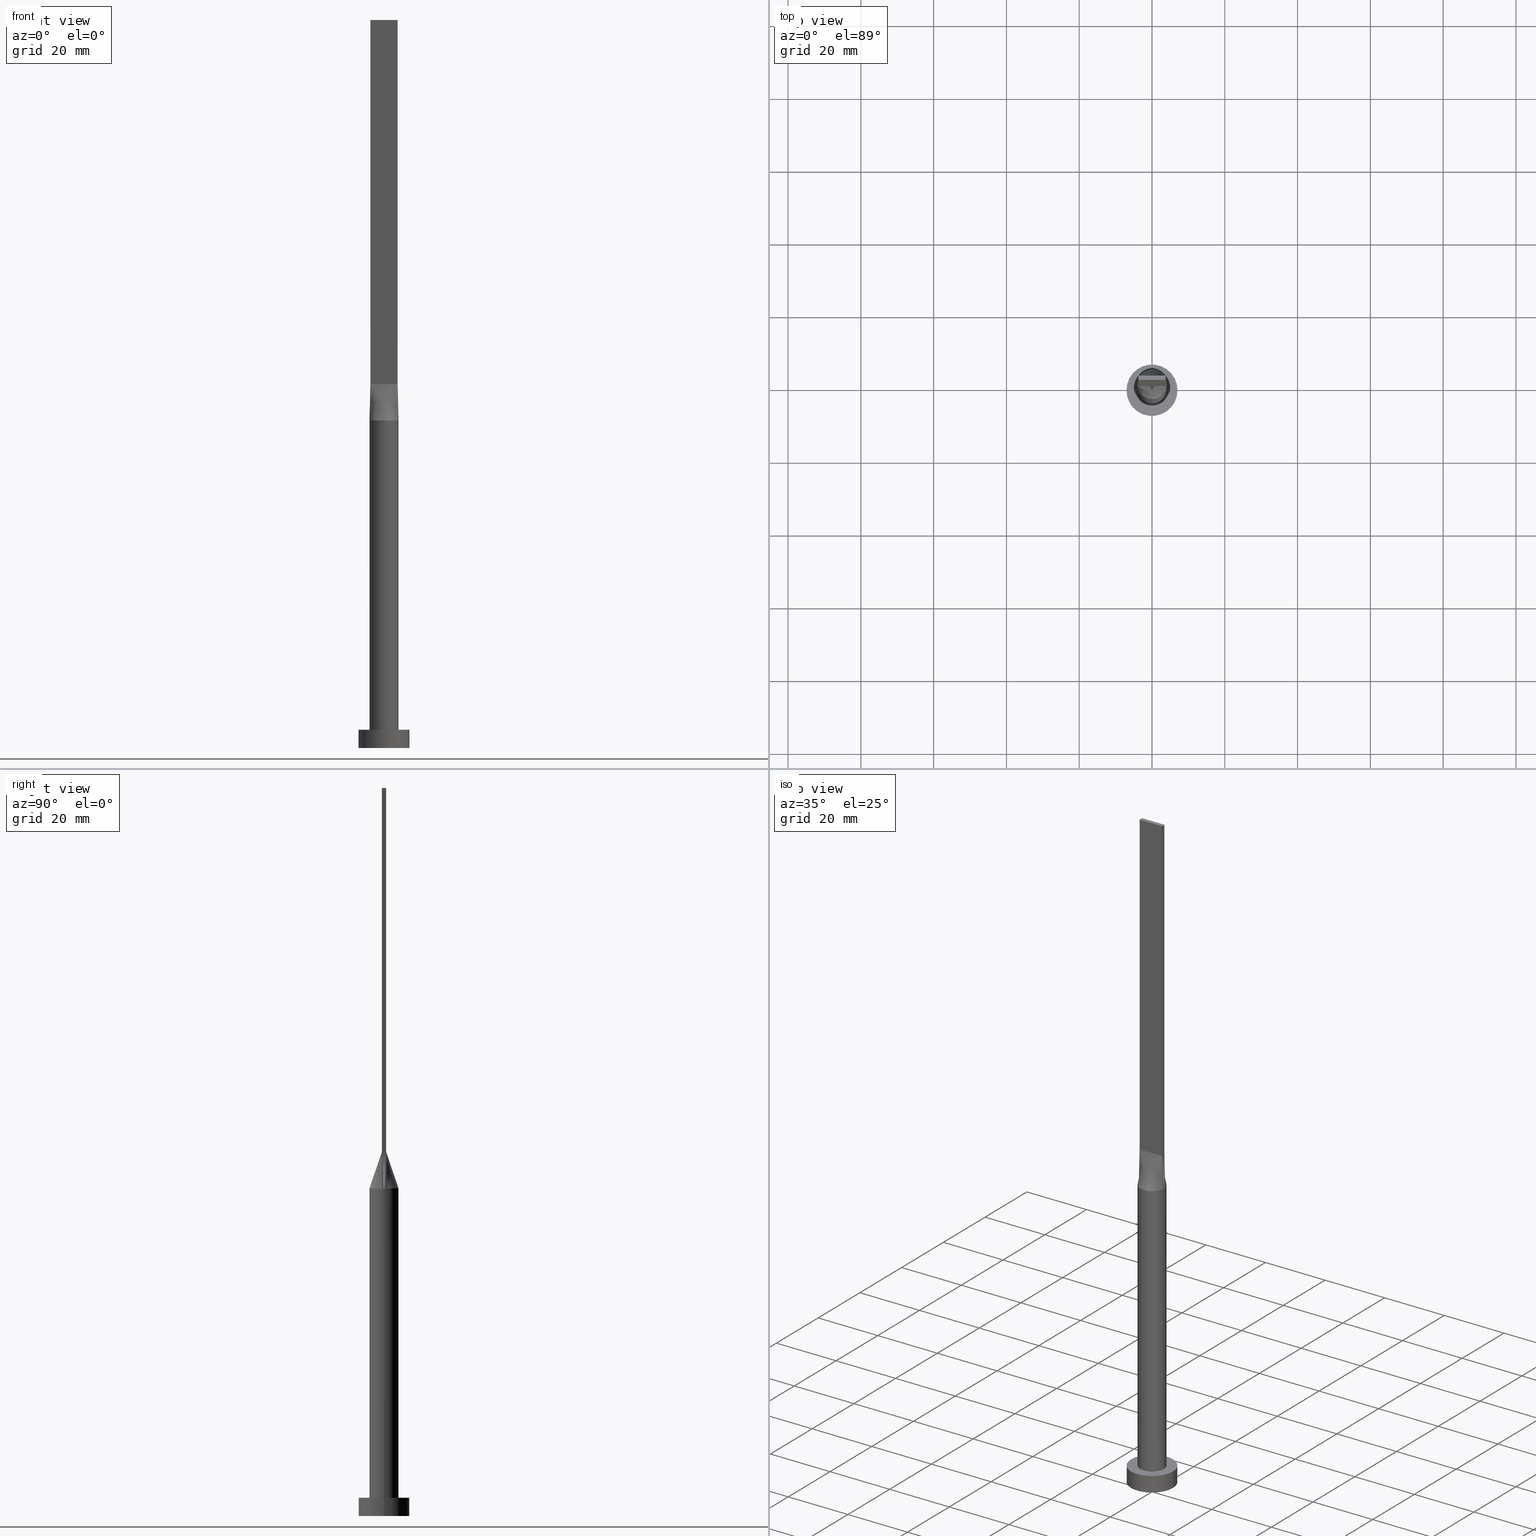
[diagram: canonical four-view strip — front | top / right | iso, engineering-drawing reading convention]
A machine part, canonical four-view strip (front | top / right | iso — engineering-drawing reading convention). The complete STEP part file that produces these views, byte-faithful:
ISO-10303-21;
HEADER;
FILE_DESCRIPTION (( 'STEP AP203' ),
    '1' );
FILE_NAME ('1fcb.STEP',
    '2023-02-13T09:37:36',
    ( '' ),
    ( '' ),
    'SwSTEP 2.0',
    'SolidWorks 2019',
    '' );
FILE_SCHEMA (( 'CONFIG_CONTROL_DESIGN' ));
ENDSEC;

DATA;
#1 = VECTOR ( 'NONE', #348, 1000.000000000000000 ) ;
#2 = CARTESIAN_POINT ( 'NONE',  ( -2.500000000000002665, 0.6000000000000000888, 100.0000000000000000 ) ) ;
#3 = CARTESIAN_POINT ( 'NONE',  ( -0.3124999999999982792, -0.5999999999999995337, 100.0000000000000142 ) ) ;
#4 = APPLICATION_CONTEXT ( 'configuration controlled 3d designs of mechanical parts and assemblies' ) ;
#5 = DIRECTION ( 'NONE',  ( 1.000000000000000000, 0.000000000000000000, 0.000000000000000000 ) ) ;
#6 = B_SPLINE_CURVE_WITH_KNOTS ( 'NONE', 3,
 ( #395, #580, #506, #510, #108, #64, #277, #460, #61, #200, #296, #479, #34, #420, #483, #525, #165, #468 ),
 .UNSPECIFIED., .F., .F.,
 ( 4, 2, 2, 2, 2, 2, 2, 2, 4 ),
 ( 0.000000000000000000, 0.1249999999999999445, 0.2499999999999998890, 0.3749999999999998335, 0.4999999999999997780, 0.6249999999999997780, 0.7499999999999998890, 0.8749999999999998890, 1.000000000000000000 ),
 .UNSPECIFIED. ) ;
#7 = CARTESIAN_POINT ( 'NONE',  ( -3.219262664220059023, -2.422342486356523050, 90.00000000000001421 ) ) ;
#8 = ORIENTED_EDGE ( 'NONE', *, *, #244, .T. ) ;
#9 = CARTESIAN_POINT ( 'NONE',  ( 0.3124999999999934497, 0.6000000000000000888, 100.0000000000000142 ) ) ;
#10 = CARTESIAN_POINT ( 'NONE',  ( -2.553164211252349158, -3.116528153703943094, 90.00000000000008527 ) ) ;
#11 = ADVANCED_FACE ( 'NONE', ( #439 ), #385, .T. ) ;
#12 = ORIENTED_EDGE ( 'NONE', *, *, #301, .T. ) ;
#13 = CARTESIAN_POINT ( 'NONE',  ( 0.000000000000000000, 0.000000000000000000, 90.00000000000001421 ) ) ;
#14 = VECTOR ( 'NONE', #377, 1000.000000000000000 ) ;
#15 = DIRECTION ( 'NONE',  ( -0.000000000000000000, -0.000000000000000000, -1.000000000000000000 ) ) ;
#16 = ORIENTED_EDGE ( 'NONE', *, *, #449, .F. ) ;
#17 = FACE_OUTER_BOUND ( 'NONE', #232, .T. ) ;
#18 = ORIENTED_EDGE ( 'NONE', *, *, #476, .F. ) ;
#19 = DIRECTION ( 'NONE',  ( -0.01997216621675833650, -0.003195546594681163317, 0.9997954296047624201 ) ) ;
#20 = EDGE_CURVE ( 'NONE', #281, #240, #435, .T. ) ;
#21 = VECTOR ( 'NONE', #63, 1000.000000000000000 ) ;
#22 = ORIENTED_EDGE ( 'NONE', *, *, #514, .T. ) ;
#23 = FACE_OUTER_BOUND ( 'NONE', #67, .T. ) ;
#24 = ORIENTED_EDGE ( 'NONE', *, *, #315, .T. ) ;
#25 = DIRECTION ( 'NONE',  ( 0.000000000000000000, 0.000000000000000000, 1.000000000000000000 ) ) ;
#26 = CARTESIAN_POINT ( 'NONE',  ( 3.983043858920071845, 0.4239536840938771811, 90.00000000000001421 ) ) ;
#27 = ORIENTED_EDGE ( 'NONE', *, *, #99, .F. ) ;
#28 = EDGE_CURVE ( 'NONE', #33, #102, #426, .T. ) ;
#29 = CARTESIAN_POINT ( 'NONE',  ( 0.000000000000000000, 0.000000000000000000, 90.00000000000001421 ) ) ;
#30 = CARTESIAN_POINT ( 'NONE',  ( -3.437499999999999556, -0.5999999999999993117, 100.0000000000000000 ) ) ;
#31 = AXIS2_PLACEMENT_3D ( 'NONE', #251, #484, #391 ) ;
#32 = CARTESIAN_POINT ( 'NONE',  ( 3.750000000000000000, 0.6000000000000001998, 100.0000000000000000 ) ) ;
#33 = VERTEX_POINT ( 'NONE', #389 ) ;
#34 = CARTESIAN_POINT ( 'NONE',  ( -2.553164211252348714, 3.116528153703943538, 90.00000000000000000 ) ) ;
#35 = CARTESIAN_POINT ( 'NONE',  ( -3.750000000000000000, -0.5999999999999993117, 200.0000000000000000 ) ) ;
#36 = ADVANCED_FACE ( 'NONE', ( #572 ), #87, .F. ) ;
#37 = VECTOR ( 'NONE', #368, 1000.000000000000000 ) ;
#38 = CYLINDRICAL_SURFACE ( 'NONE', #218, 7.000000000000000000 ) ;
#39 = CARTESIAN_POINT ( 'NONE',  ( 3.125000000000000000, -0.5999999999999996447, 100.0000000000000000 ) ) ;
#40 = DIRECTION ( 'NONE',  ( 1.000000000000000000, 0.000000000000000000, 0.000000000000000000 ) ) ;
#41 = CARTESIAN_POINT ( 'NONE',  ( 3.949762527666821565, -0.6319620044266891501, 90.00000000000001421 ) ) ;
#42 = ORIENTED_EDGE ( 'NONE', *, *, #268, .F. ) ;
#43 = EDGE_CURVE ( 'NONE', #52, #192, #254, .T. ) ;
#44 = CARTESIAN_POINT ( 'NONE',  ( -3.949762527666821565, 0.6319620044266903713, 90.00000000000001421 ) ) ;
#45 = ORIENTED_EDGE ( 'NONE', *, *, #186, .F. ) ;
#46 = PRODUCT_RELATED_PRODUCT_CATEGORY ( 'detail', '', ( #292 ) ) ;
#47 = LOCAL_TIME ( 10, 37, 36.00000000000000000, #118 ) ;
#48 = CARTESIAN_POINT ( 'NONE',  ( -7.000000000000000000, 0.000000000000000000, 5.000000000000000000 ) ) ;
#49 = VERTEX_POINT ( 'NONE', #345 ) ;
#50 = CARTESIAN_POINT ( 'NONE',  ( -3.897760447583618504, 0.9569750049467115049, 90.00000000000004263 ) ) ;
#51 = CARTESIAN_POINT ( 'NONE',  ( 0.3125000000000016098, -0.5999999999999995337, 100.0000000000000000 ) ) ;
#52 = VERTEX_POINT ( 'NONE', #198 ) ;
#53 = FACE_OUTER_BOUND ( 'NONE', #516, .T. ) ;
#54 = AXIS2_PLACEMENT_3D ( 'NONE', #77, #205, #575 ) ;
#55 = CARTESIAN_POINT ( 'NONE',  ( 3.750000000000000000, 0.6000000000000001998, 200.0000000000000000 ) ) ;
#56 = CC_DESIGN_APPROVAL ( #393, ( #403 ) ) ;
#57 = VERTEX_POINT ( 'NONE', #378 ) ;
#58 = CARTESIAN_POINT ( 'NONE',  ( -3.750000000000000000, 0.6000000000000001998, 200.0000000000000000 ) ) ;
#59 = ORIENTED_EDGE ( 'NONE', *, *, #130, .F. ) ;
#60 = CARTESIAN_POINT ( 'NONE',  ( 3.849881263833410561, 0.6159810022133449525, 95.00000000000000000 ) ) ;
#61 = CARTESIAN_POINT ( 'NONE',  ( 0.5684794080625145130, 4.000000000000000000, 90.00000000000000000 ) ) ;
#62 = EDGE_LOOP ( 'NONE', ( #413, #555, #538, #425, #221, #24 ) ) ;
#63 = DIRECTION ( 'NONE',  ( -0.000000000000000000, -0.000000000000000000, -1.000000000000000000 ) ) ;
#64 = CARTESIAN_POINT ( 'NONE',  ( 2.553164211252348714, 3.116528153703943538, 90.00000000000001421 ) ) ;
#65 = CIRCLE ( 'NONE', #246, 4.000000000000000000 ) ;
#66 = CC_DESIGN_APPROVAL ( #116, ( #562 ) ) ;
#67 = EDGE_LOOP ( 'NONE', ( #8, #228 ) ) ;
#68 = COORDINATED_UNIVERSAL_TIME_OFFSET ( 1, 0, .AHEAD. ) ;
#69 = EDGE_CURVE ( 'NONE', #52, #207, #530, .T. ) ;
#70 = CARTESIAN_POINT ( 'NONE',  ( 3.750000000000000000, 0.6000000000000001998, 100.0000000000000000 ) ) ;
#71 = ORIENTED_EDGE ( 'NONE', *, *, #331, .T. ) ;
#72 = PERSON_AND_ORGANIZATION ( #461, #438 ) ;
#73 = FACE_OUTER_BOUND ( 'NONE', #258, .T. ) ;
#74 = CARTESIAN_POINT ( 'NONE',  ( 4.000000000000000000, 4.898587196589412829E-16, 90.00000000000001421 ) ) ;
#75 =( NAMED_UNIT ( * ) SI_UNIT ( $, .STERADIAN. ) SOLID_ANGLE_UNIT ( ) );
#76 = LINE ( 'NONE', #163, #14 ) ;
#77 = CARTESIAN_POINT ( 'NONE',  ( 0.000000000000000000, 0.000000000000000000, 0.000000000000000000 ) ) ;
#78 = CIRCLE ( 'NONE', #406, 7.000000000000000000 ) ;
#79 =( LENGTH_UNIT ( ) NAMED_UNIT ( * ) SI_UNIT ( .MILLI., .METRE. ) );
#80 = CARTESIAN_POINT ( 'NONE',  ( -3.849881263833410561, 0.6159810022133451746, 95.00000000000000000 ) ) ;
#81 = DIRECTION ( 'NONE',  ( -1.000000000000000000, 5.782411586589358625E-17, 0.000000000000000000 ) ) ;
#82 = ADVANCED_FACE ( 'NONE', ( #85 ), #576, .T. ) ;
#83 = CARTESIAN_POINT ( 'NONE',  ( 3.750000000000000000, -0.5999999999999997558, 200.0000000000000000 ) ) ;
#84 = DIRECTION ( 'NONE',  ( -0.000000000000000000, -0.000000000000000000, -1.000000000000000000 ) ) ;
#85 = FACE_OUTER_BOUND ( 'NONE', #148, .T. ) ;
#86 = DIRECTION ( 'NONE',  ( 0.000000000000000000, 0.000000000000000000, 1.000000000000000000 ) ) ;
#87 = PLANE ( 'NONE',  #88 ) ;
#88 = AXIS2_PLACEMENT_3D ( 'NONE', #35, #166, #81 ) ;
#89 = APPLICATION_CONTEXT ( 'configuration controlled 3d designs of mechanical parts and assemblies' ) ;
#90 = LINE ( 'NONE', #175, #560 ) ;
#91 = EDGE_CURVE ( 'NONE', #495, #418, #295, .T. ) ;
#92 = CARTESIAN_POINT ( 'NONE',  ( -0.6249999999999978906, -0.5999999999999994227, 100.0000000000000000 ) ) ;
#93 = CARTESIAN_POINT ( 'NONE',  ( 2.499999999999996003, 0.6000000000000000888, 100.0000000000000000 ) ) ;
#94 = ORIENTED_EDGE ( 'NONE', *, *, #153, .T. ) ;
#95 = CARTESIAN_POINT ( 'NONE',  ( 0.000000000000000000, 0.000000000000000000, 5.000000000000000000 ) ) ;
#96 = VERTEX_POINT ( 'NONE', #532 ) ;
#97 = AXIS2_PLACEMENT_3D ( 'NONE', #243, #559, #300 ) ;
#98 = CARTESIAN_POINT ( 'NONE',  ( 2.553164211252348714, 3.116528153703943538, 90.00000000000001421 ) ) ;
#99 = EDGE_CURVE ( 'NONE', #102, #33, #323, .T. ) ;
#100 = CARTESIAN_POINT ( 'NONE',  ( 3.750000000000000000, 0.6000000000000001998, 200.0000000000000000 ) ) ;
#101 = CYLINDRICAL_SURFACE ( 'NONE', #535, 4.000000000000000000 ) ;
#102 = VERTEX_POINT ( 'NONE', #526 ) ;
#103 = AXIS2_PLACEMENT_3D ( 'NONE', #185, #147, #107 ) ;
#104 = DIRECTION ( 'NONE',  ( 1.000000000000000000, 0.000000000000000000, 0.000000000000000000 ) ) ;
#105 = ADVANCED_FACE ( 'NONE', ( #160 ), #290, .F. ) ;
#106 = ORIENTED_EDGE ( 'NONE', *, *, #20, .T. ) ;
#107 = DIRECTION ( 'NONE',  ( 1.000000000000000000, 0.000000000000000000, 0.000000000000000000 ) ) ;
#108 = CARTESIAN_POINT ( 'NONE',  ( 3.219262664220058134, 2.422342486356523938, 90.00000000000000000 ) ) ;
#109 = ORIENTED_EDGE ( 'NONE', *, *, #485, .F. ) ;
#110 = DIRECTION ( 'NONE',  ( -0.000000000000000000, 0.000000000000000000, -1.000000000000000000 ) ) ;
#111 = EDGE_LOOP ( 'NONE', ( #190, #42, #504, #557 ) ) ;
#112 = SECURITY_CLASSIFICATION_LEVEL ( 'unclassified' ) ;
#113 = CIRCLE ( 'NONE', #132, 4.000000000000000000 ) ;
#114 = ORIENTED_EDGE ( 'NONE', *, *, #261, .T. ) ;
#115 = PERSON_AND_ORGANIZATION_ROLE ( 'design_supplier' ) ;
#116 = APPROVAL ( #478, 'NEUR�EN�' ) ;
#117 = DIRECTION ( 'NONE',  ( 0.000000000000000000, 0.000000000000000000, 1.000000000000000000 ) ) ;
#118 = COORDINATED_UNIVERSAL_TIME_OFFSET ( 1, 0, .AHEAD. ) ;
#119 = CARTESIAN_POINT ( 'NONE',  ( 3.750000000000000000, 0.6000000000000001998, 200.0000000000000000 ) ) ;
#120 = CARTESIAN_POINT ( 'NONE',  ( -3.983043858920070956, -0.4239536840938767370, 90.00000000000001421 ) ) ;
#121 = APPROVAL_ROLE ( '' ) ;
#122 = CARTESIAN_POINT ( 'NONE',  ( 3.897760447583618948, 0.9569750049467118380, 90.00000000000002842 ) ) ;
#123 = CARTESIAN_POINT ( 'NONE',  ( -3.949762527666821565, -0.6319620044266894832, 90.00000000000001421 ) ) ;
#124 = ADVANCED_FACE ( 'NONE', ( #128 ), #237, .T. ) ;
#125 = PERSON_AND_ORGANIZATION ( #461, #438 ) ;
#126 = CARTESIAN_POINT ( 'NONE',  ( -3.749999999999999556, 0.3999999999999975797, 100.0000000000000000 ) ) ;
#127 = CARTESIAN_POINT ( 'NONE',  ( -3.461914487322979905, 2.043998057340944197, 90.00000000000004263 ) ) ;
#128 = FACE_OUTER_BOUND ( 'NONE', #442, .T. ) ;
#129 = APPROVAL_ROLE ( '' ) ;
#130 = EDGE_CURVE ( 'NONE', #96, #57, #6, .T. ) ;
#131 = CARTESIAN_POINT ( 'NONE',  ( 4.000000000000000000, 4.898587196589412829E-16, 5.000000000000000000 ) ) ;
#132 = AXIS2_PLACEMENT_3D ( 'NONE', #321, #149, #267 ) ;
#133 = CARTESIAN_POINT ( 'NONE',  ( 3.219262664220058134, 2.422342486356523938, 90.00000000000000000 ) ) ;
#134 = CARTESIAN_POINT ( 'NONE',  ( 3.750000000000000000, -0.5999999999999997558, 100.0000000000000000 ) ) ;
#135 = CARTESIAN_POINT ( 'NONE',  ( -3.461914487322979905, -2.043998057340941976, 89.99999999999997158 ) ) ;
#136 = CARTESIAN_POINT ( 'NONE',  ( 3.999842262273348936, 9.852009208038395466E-16, 90.00000000000001421 ) ) ;
#137 = EDGE_CURVE ( 'NONE', #365, #52, #434, .T. ) ;
#138 = VECTOR ( 'NONE', #285, 1000.000000000000000 ) ;
#139 = CARTESIAN_POINT ( 'NONE',  ( 7.000000000000000000, 8.572527594031473190E-16, 5.000000000000000000 ) ) ;
#140 = ORIENTED_EDGE ( 'NONE', *, *, #137, .F. ) ;
#141 = FACE_OUTER_BOUND ( 'NONE', #111, .T. ) ;
#142 = ORIENTED_EDGE ( 'NONE', *, *, #28, .T. ) ;
#143 = PLANE ( 'NONE',  #199 ) ;
#144 = EDGE_CURVE ( 'NONE', #418, #236, #574, .T. ) ;
#145 = ORIENTED_EDGE ( 'NONE', *, *, #219, .F. ) ;
#146 = AXIS2_PLACEMENT_3D ( 'NONE', #412, #452, #505 ) ;
#147 = DIRECTION ( 'NONE',  ( 0.000000000000000000, 0.000000000000000000, 1.000000000000000000 ) ) ;
#148 = EDGE_LOOP ( 'NONE', ( #322, #260, #152, #45, #177 ) ) ;
#149 = DIRECTION ( 'NONE',  ( 0.000000000000000000, 0.000000000000000000, 1.000000000000000000 ) ) ;
#150 = VERTEX_POINT ( 'NONE', #70 ) ;
#151 = PERSON_AND_ORGANIZATION ( #461, #438 ) ;
#152 = ORIENTED_EDGE ( 'NONE', *, *, #194, .F. ) ;
#153 = EDGE_CURVE ( 'NONE', #57, #192, #428, .T. ) ;
#154 = MECHANICAL_CONTEXT ( 'NONE', #89, 'mechanical' ) ;
#155 = VECTOR ( 'NONE', #417, 1000.000000000000000 ) ;
#156 = CARTESIAN_POINT ( 'NONE',  ( 0.000000000000000000, 0.000000000000000000, 0.000000000000000000 ) ) ;
#157 = B_SPLINE_SURFACE_WITH_KNOTS ( 'NONE', 3, 1, ( 
 ( #242, #159 ),
 ( #122, #336 ),
 ( #523, #179 ),
 ( #216, #93 ),
 ( #133, #446 ),
 ( #98, #440 ),
 ( #577, #486 ),
 ( #497, #253 ),
 ( #537, #9 ),
 ( #350, #220 ),
 ( #312, #397 ),
 ( #171, #265 ),
 ( #493, #354 ),
 ( #394, #262 ),
 ( #127, #2 ),
 ( #450, #443 ),
 ( #50, #182 ),
 ( #44, #400 ) ),
 .UNSPECIFIED., .F., .F., .F.,
 ( 4, 2, 2, 2, 2, 2, 2, 2, 4 ),
 ( 2, 2 ),
 ( 0.000000000000000000, 0.1249999999999999445, 0.2499999999999998890, 0.3749999999999998335, 0.4999999999999997780, 0.6249999999999997780, 0.7499999999999998890, 0.8749999999999998890, 1.000000000000000000 ),
 ( 0.000000000000000000, 1.000000000000000000 ),
 .UNSPECIFIED. ) ;
#158 = PERSON_AND_ORGANIZATION ( #461, #438 ) ;
#159 = CARTESIAN_POINT ( 'NONE',  ( 3.750000000000000000, 0.6000000000000001998, 100.0000000000000000 ) ) ;
#160 = FACE_OUTER_BOUND ( 'NONE', #462, .T. ) ;
#161 = CARTESIAN_POINT ( 'NONE',  ( -3.750000000000000000, -0.5999999999999993117, 100.0000000000000000 ) ) ;
#162 = EDGE_CURVE ( 'NONE', #281, #96, #255, .T. ) ;
#163 = CARTESIAN_POINT ( 'NONE',  ( -3.849881263833410561, -0.6159810022133443974, 95.00000000000000000 ) ) ;
#164 = DIRECTION ( 'NONE',  ( 1.000000000000000000, 0.000000000000000000, 0.000000000000000000 ) ) ;
#165 = CARTESIAN_POINT ( 'NONE',  ( -3.897760447583618504, 0.9569750049467115049, 90.00000000000004263 ) ) ;
#166 = DIRECTION ( 'NONE',  ( 5.782411586589358625E-17, 1.000000000000000000, -0.000000000000000000 ) ) ;
#167 = AXIS2_PLACEMENT_3D ( 'NONE', #473, #335, #566 ) ;
#168 = FACE_OUTER_BOUND ( 'NONE', #369, .T. ) ;
#169 = CARTESIAN_POINT ( 'NONE',  ( -3.750000000000000000, 0.6000000000000001998, 200.0000000000000000 ) ) ;
#170 = ADVANCED_FACE ( 'NONE', ( #168 ), #487, .T. ) ;
#171 = CARTESIAN_POINT ( 'NONE',  ( -2.127794970397209884, 3.430476893735948440, 90.00000000000002842 ) ) ;
#172 = CARTESIAN_POINT ( 'NONE',  ( 3.800365609718893367, -1.311488165564686614, 90.00000000000001421 ) ) ;
#173 = APPROVAL_STATUS ( 'not_yet_approved' ) ;
#174 = CYLINDRICAL_SURFACE ( 'NONE', #447, 7.000000000000000000 ) ;
#175 = CARTESIAN_POINT ( 'NONE',  ( -3.750000000000000000, -0.5999999999999993117, 100.0000000000000000 ) ) ;
#176 = CARTESIAN_POINT ( 'NONE',  ( 0.5684794080625150681, -4.000000000000000888, 90.00000000000002842 ) ) ;
#177 = ORIENTED_EDGE ( 'NONE', *, *, #153, .F. ) ;
#178 = APPROVAL_DATE_TIME ( #399, #421 ) ;
#179 = CARTESIAN_POINT ( 'NONE',  ( 3.124999999999997780, 0.6000000000000001998, 100.0000000000000000 ) ) ;
#180 = EDGE_CURVE ( 'NONE', #195, #361, #424, .T. ) ;
#181 = CARTESIAN_POINT ( 'NONE',  ( -1.562499999999998002, -0.5999999999999994227, 100.0000000000000000 ) ) ;
#182 = CARTESIAN_POINT ( 'NONE',  ( -3.437500000000000444, 0.6000000000000000888, 100.0000000000000000 ) ) ;
#183 = CARTESIAN_POINT ( 'NONE',  ( 1.134810363096319108, -3.874001625491798162, 90.00000000000000000 ) ) ;
#184 = VECTOR ( 'NONE', #390, 1000.000000000000000 ) ;
#185 = CARTESIAN_POINT ( 'NONE',  ( 0.000000000000000000, 0.000000000000000000, 5.000000000000000000 ) ) ;
#186 = EDGE_CURVE ( 'NONE', #192, #581, #531, .T. ) ;
#187 = CARTESIAN_POINT ( 'NONE',  ( -4.000000000000000000, 0.000000000000000000, 5.000000000000000000 ) ) ;
#188 = ORIENTED_EDGE ( 'NONE', *, *, #331, .F. ) ;
#189 = CARTESIAN_POINT ( 'NONE',  ( -3.750000000000000000, -0.5999999999999993117, 200.0000000000000000 ) ) ;
#190 = ORIENTED_EDGE ( 'NONE', *, *, #186, .T. ) ;
#191 = DIRECTION ( 'NONE',  ( 0.000000000000000000, 0.000000000000000000, 1.000000000000000000 ) ) ;
#192 = VERTEX_POINT ( 'NONE', #568 ) ;
#193 = CARTESIAN_POINT ( 'NONE',  ( 3.950116941581656604, -0.6320178829360038053, 90.00000000000001421 ) ) ;
#194 = EDGE_CURVE ( 'NONE', #581, #495, #76, .T. ) ;
#195 = VERTEX_POINT ( 'NONE', #339 ) ;
#196 = PERSON_AND_ORGANIZATION ( #461, #438 ) ;
#197 = DIRECTION ( 'NONE',  ( 0.000000000000000000, -1.000000000000000000, 0.000000000000000000 ) ) ;
#198 = CARTESIAN_POINT ( 'NONE',  ( -3.750000000000000000, 0.6000000000000001998, 200.0000000000000000 ) ) ;
#199 = AXIS2_PLACEMENT_3D ( 'NONE', #372, #512, #410 ) ;
#200 = CARTESIAN_POINT ( 'NONE',  ( -0.5684794080625158452, 3.999999999999999112, 89.99999999999998579 ) ) ;
#201 = CARTESIAN_POINT ( 'NONE',  ( -3.800365609718892923, -1.311488165564685726, 90.00000000000000000 ) ) ;
#202 = CC_DESIGN_DATE_AND_TIME_ASSIGNMENT ( #518, #283, ( #403 ) ) ;
#203 = COORDINATED_UNIVERSAL_TIME_OFFSET ( 1, 0, .AHEAD. ) ;
#204 = CARTESIAN_POINT ( 'NONE',  ( -3.750000000000000000, 0.6000000000000001998, 100.0000000000000000 ) ) ;
#205 = DIRECTION ( 'NONE',  ( 0.000000000000000000, 0.000000000000000000, 1.000000000000000000 ) ) ;
#206 = CALENDAR_DATE ( 2023, 13, 2 ) ;
#207 = VERTEX_POINT ( 'NONE', #519 ) ;
#208 = CARTESIAN_POINT ( 'NONE',  ( -3.750000000000000000, -0.5999999999999993117, 100.0000000000000000 ) ) ;
#209 = APPROVAL_PERSON_ORGANIZATION ( #72, #116, #386 ) ;
#210 = LINE ( 'NONE', #392, #1 ) ;
#211 = CARTESIAN_POINT ( 'NONE',  ( -2.127794970397209884, -3.430476893735947996, 90.00000000000000000 ) ) ;
#212 = CALENDAR_DATE ( 2023, 13, 2 ) ;
#213 = FACE_OUTER_BOUND ( 'NONE', #357, .T. ) ;
#214 = CARTESIAN_POINT ( 'NONE',  ( 3.750000000000000000, -0.5999999999999997558, 100.0000000000000000 ) ) ;
#215 = ORIENTED_EDGE ( 'NONE', *, *, #130, .T. ) ;
#216 = CARTESIAN_POINT ( 'NONE',  ( 3.461914487322979017, 2.043998057340944197, 90.00000000000001421 ) ) ;
#217 = CARTESIAN_POINT ( 'NONE',  ( -1.249999999999997558, -0.5999999999999994227, 100.0000000000000000 ) ) ;
#218 = AXIS2_PLACEMENT_3D ( 'NONE', #358, #579, #302 ) ;
#219 = EDGE_CURVE ( 'NONE', #275, #102, #564, .T. ) ;
#220 = CARTESIAN_POINT ( 'NONE',  ( -0.3125000000000063283, 0.6000000000000000888, 100.0000000000000142 ) ) ;
#221 = ORIENTED_EDGE ( 'NONE', *, *, #180, .T. ) ;
#222 = DIRECTION ( 'NONE',  ( 0.000000000000000000, 0.000000000000000000, 1.000000000000000000 ) ) ;
#223 = CARTESIAN_POINT ( 'NONE',  ( 7.000000000000000000, 8.572527594031473190E-16, 5.000000000000000000 ) ) ;
#224 = ADVANCED_FACE ( 'NONE', ( #73 ), #157, .T. ) ;
#225 = VECTOR ( 'NONE', #84, 1000.000000000000000 ) ;
#226 = FACE_BOUND ( 'NONE', #374, .T. ) ;
#227 = MANIFOLD_SOLID_BREP ( 'P�idat vysunut�m5', #561 ) ;
#228 = ORIENTED_EDGE ( 'NONE', *, *, #235, .T. ) ;
#229 = FACE_OUTER_BOUND ( 'NONE', #230, .T. ) ;
#230 = EDGE_LOOP ( 'NONE', ( #27, #396 ) ) ;
#231 = DIRECTION ( 'NONE',  ( 0.000000000000000000, 0.000000000000000000, 1.000000000000000000 ) ) ;
#232 = EDGE_LOOP ( 'NONE', ( #286, #545, #491, #71 ) ) ;
#233 = AXIS2_PLACEMENT_3D ( 'NONE', #534, #256, #40 ) ;
#234 = LINE ( 'NONE', #463, #37 ) ;
#235 = EDGE_CURVE ( 'NONE', #445, #275, #498, .T. ) ;
#236 = VERTEX_POINT ( 'NONE', #134 ) ;
#237 = B_SPLINE_SURFACE_WITH_KNOTS ( 'NONE', 3, 1, ( 
 ( #123, #472 ),
 ( #293, #30 ),
 ( #201, #429 ),
 ( #135, #444 ),
 ( #7, #313 ),
 ( #10, #181 ),
 ( #211, #217 ),
 ( #500, #92 ),
 ( #451, #3 ),
 ( #176, #51 ),
 ( #183, #359 ),
 ( #578, #494 ),
 ( #543, #269 ),
 ( #352, #310 ),
 ( #257, #317 ),
 ( #172, #39 ),
 ( #306, #441 ),
 ( #41, #214 ) ),
 .UNSPECIFIED., .F., .F., .F.,
 ( 4, 2, 2, 2, 2, 2, 2, 2, 4 ),
 ( 2, 2 ),
 ( 0.000000000000000000, 0.1250000000000000555, 0.2500000000000001110, 0.3750000000000001665, 0.5000000000000001110, 0.6250000000000001110, 0.7500000000000001110, 0.8750000000000000000, 1.000000000000000000 ),
 ( 0.000000000000000000, 1.000000000000000000 ),
 .UNSPECIFIED. ) ;
#238 = CALENDAR_DATE ( 2023, 13, 2 ) ;
#239 = CARTESIAN_POINT ( 'NONE',  ( 3.999684524546696540, 0.2119768420469383408, 90.00000000000001421 ) ) ;
#240 = VERTEX_POINT ( 'NONE', #131 ) ;
#241 = PERSON_AND_ORGANIZATION ( #461, #438 ) ;
#242 = CARTESIAN_POINT ( 'NONE',  ( 3.949762527666821565, 0.6319620044266911485, 90.00000000000001421 ) ) ;
#243 = CARTESIAN_POINT ( 'NONE',  ( 0.000000000000000000, 0.000000000000000000, 90.00000000000001421 ) ) ;
#244 = EDGE_CURVE ( 'NONE', #275, #445, #78, .T. ) ;
#245 = APPROVAL_STATUS ( 'not_yet_approved' ) ;
#246 = AXIS2_PLACEMENT_3D ( 'NONE', #327, #231, #104 ) ;
#247 = CARTESIAN_POINT ( 'NONE',  ( 3.949762527666821565, -0.6319620044266909265, 90.00000000000001421 ) ) ;
#248 = CARTESIAN_POINT ( 'NONE',  ( -3.750000000000000000, 0.6000000000000001998, 100.0000000000000000 ) ) ;
#249 = CARTESIAN_POINT ( 'NONE',  ( -3.949762527666821565, -0.6319620044266894832, 90.00000000000001421 ) ) ;
#250 =( NAMED_UNIT ( * ) PLANE_ANGLE_UNIT ( ) SI_UNIT ( $, .RADIAN. ) );
#251 = CARTESIAN_POINT ( 'NONE',  ( 3.750000000000000000, 0.6000000000000001998, 200.0000000000000000 ) ) ;
#252 = EDGE_CURVE ( 'NONE', #581, #236, #90, .T. ) ;
#253 = CARTESIAN_POINT ( 'NONE',  ( 0.6249999999999938938, 0.6000000000000000888, 100.0000000000000000 ) ) ;
#254 = LINE ( 'NONE', #169, #379 ) ;
#255 = CIRCLE ( 'NONE', #370, 4.000000000000000000 ) ;
#256 = DIRECTION ( 'NONE',  ( 0.000000000000000000, 0.000000000000000000, 1.000000000000000000 ) ) ;
#257 = CARTESIAN_POINT ( 'NONE',  ( 3.461914487322980349, -2.043998057340943753, 90.00000000000002842 ) ) ;
#258 = EDGE_LOOP ( 'NONE', ( #215, #94, #408, #109 ) ) ;
#259 = DIRECTION ( 'NONE',  ( 1.000000000000000000, 9.769962616701377556E-15, 0.000000000000000000 ) ) ;
#260 = ORIENTED_EDGE ( 'NONE', *, *, #362, .T. ) ;
#261 = EDGE_CURVE ( 'NONE', #418, #281, #351, .T. ) ;
#262 = CARTESIAN_POINT ( 'NONE',  ( -2.187500000000003109, 0.6000000000000000888, 100.0000000000000000 ) ) ;
#263 = VECTOR ( 'NONE', #565, 1000.000000000000000 ) ;
#264 = CC_DESIGN_PERSON_AND_ORGANIZATION_ASSIGNMENT ( #196, #467, ( #416 ) ) ;
#265 = CARTESIAN_POINT ( 'NONE',  ( -1.250000000000004663, 0.6000000000000000888, 100.0000000000000000 ) ) ;
#266 = ORIENTED_EDGE ( 'NONE', *, *, #235, .F. ) ;
#267 = DIRECTION ( 'NONE',  ( 1.000000000000000000, 0.000000000000000000, 0.000000000000000000 ) ) ;
#268 = EDGE_CURVE ( 'NONE', #207, #581, #402, .T. ) ;
#269 = CARTESIAN_POINT ( 'NONE',  ( 1.562500000000001776, -0.5999999999999996447, 100.0000000000000000 ) ) ;
#270 = LINE ( 'NONE', #139, #573 ) ;
#271 = ORIENTED_EDGE ( 'NONE', *, *, #387, .F. ) ;
#272 = CIRCLE ( 'NONE', #233, 4.000000000000000000 ) ;
#273 = APPROVAL_PERSON_ORGANIZATION ( #158, #393, #121 ) ;
#274 = CARTESIAN_POINT ( 'NONE',  ( 3.750000000000000000, 0.6000000000000001998, 100.0000000000000000 ) ) ;
#275 = VERTEX_POINT ( 'NONE', #48 ) ;
#276 = LINE ( 'NONE', #551, #21 ) ;
#277 = CARTESIAN_POINT ( 'NONE',  ( 2.127794970397208107, 3.430476893735948885, 90.00000000000000000 ) ) ;
#278 = ORIENTED_EDGE ( 'NONE', *, *, #144, .F. ) ;
#279 = ADVANCED_FACE ( 'NONE', ( #437 ), #38, .T. ) ;
#280 = DIRECTION ( 'NONE',  ( -1.000000000000000000, 0.000000000000000000, 0.000000000000000000 ) ) ;
#281 = VERTEX_POINT ( 'NONE', #136 ) ;
#282 = VECTOR ( 'NONE', #19, 1000.000000000000000 ) ;
#283 = DATE_TIME_ROLE ( 'creation_date' ) ;
#284 = CC_DESIGN_SECURITY_CLASSIFICATION ( #416, ( #562 ) ) ;
#285 = DIRECTION ( 'NONE',  ( 0.01997216621675833650, -0.003195546594681206685, 0.9997954296047624201 ) ) ;
#286 = ORIENTED_EDGE ( 'NONE', *, *, #387, .T. ) ;
#287 = DATE_AND_TIME ( #238, #544 ) ;
#288 = CC_DESIGN_PERSON_AND_ORGANIZATION_ASSIGNMENT ( #427, #419, ( #403 ) ) ;
#289 = CARTESIAN_POINT ( 'NONE',  ( 3.749999999999999556, 0.4000000000000005773, 100.0000000000000000 ) ) ;
#290 = PLANE ( 'NONE',  #31 ) ;
#291 = DIRECTION ( 'NONE',  ( 0.000000000000000000, 0.000000000000000000, 1.000000000000000000 ) ) ;
#292 = PRODUCT ( '1fcb', '1fcb', '', ( #154 ) ) ;
#293 = CARTESIAN_POINT ( 'NONE',  ( -3.897760447583618948, -0.9569750049467102837, 90.00000000000000000 ) ) ;
#294 = PERSON_AND_ORGANIZATION_ROLE ( 'design_owner' ) ;
#295 = CIRCLE ( 'NONE', #97, 4.000000000000000000 ) ;
#296 = CARTESIAN_POINT ( 'NONE',  ( -1.134810363096319996, 3.874001625491799938, 90.00000000000002842 ) ) ;
#297 = DIRECTION ( 'NONE',  ( -0.000000000000000000, -0.000000000000000000, -1.000000000000000000 ) ) ;
#298 = CALENDAR_DATE ( 2023, 13, 2 ) ;
#299 = CARTESIAN_POINT ( 'NONE',  ( -4.000000000000000000, 0.000000000000000000, 90.00000000000001421 ) ) ;
#300 = DIRECTION ( 'NONE',  ( 1.000000000000000000, 0.000000000000000000, 0.000000000000000000 ) ) ;
#301 = EDGE_CURVE ( 'NONE', #150, #192, #210, .T. ) ;
#302 = DIRECTION ( 'NONE',  ( -1.000000000000000000, 0.000000000000000000, 0.000000000000000000 ) ) ;
#303 = CARTESIAN_POINT ( 'NONE',  ( 0.000000000000000000, 0.000000000000000000, 90.00000000000001421 ) ) ;
#304 = DIRECTION ( 'NONE',  ( -0.000000000000000000, -0.000000000000000000, -1.000000000000000000 ) ) ;
#305 = AXIS2_PLACEMENT_3D ( 'NONE', #303, #297, #475 ) ;
#306 = CARTESIAN_POINT ( 'NONE',  ( 3.897760447583619836, -0.9569750049467118380, 90.00000000000001421 ) ) ;
#307 = CC_DESIGN_APPROVAL ( #421, ( #416 ) ) ;
#308 = DIRECTION ( 'NONE',  ( 1.000000000000000000, 0.000000000000000000, 0.000000000000000000 ) ) ;
#309 = CARTESIAN_POINT ( 'NONE',  ( 0.000000000000000000, 0.000000000000000000, 90.00000000000001421 ) ) ;
#310 = CARTESIAN_POINT ( 'NONE',  ( 2.187500000000000888, -0.5999999999999996447, 100.0000000000000000 ) ) ;
#311 = ORIENTED_EDGE ( 'NONE', *, *, #244, .F. ) ;
#312 = CARTESIAN_POINT ( 'NONE',  ( -1.134810363096319996, 3.874001625491799938, 90.00000000000002842 ) ) ;
#313 = CARTESIAN_POINT ( 'NONE',  ( -2.187499999999998668, -0.5999999999999994227, 100.0000000000000000 ) ) ;
#314 = VECTOR ( 'NONE', #509, 1000.000000000000000 ) ;
#315 = EDGE_CURVE ( 'NONE', #361, #240, #272, .T. ) ;
#316 = PLANE ( 'NONE',  #436 ) ;
#317 = CARTESIAN_POINT ( 'NONE',  ( 2.500000000000000444, -0.5999999999999996447, 100.0000000000000000 ) ) ;
#318 = CC_DESIGN_PERSON_AND_ORGANIZATION_ASSIGNMENT ( #515, #115, ( #562 ) ) ;
#319 = LINE ( 'NONE', #189, #314 ) ;
#320 = ORIENTED_EDGE ( 'NONE', *, *, #252, .F. ) ;
#321 = CARTESIAN_POINT ( 'NONE',  ( 0.000000000000000000, 0.000000000000000000, 90.00000000000001421 ) ) ;
#322 = ORIENTED_EDGE ( 'NONE', *, *, #349, .T. ) ;
#323 = CIRCLE ( 'NONE', #415, 7.000000000000000000 ) ;
#324 = LINE ( 'NONE', #55, #454 ) ;
#325 = ADVANCED_FACE ( 'NONE', ( #213 ), #174, .T. ) ;
#326 = ORIENTED_EDGE ( 'NONE', *, *, #162, .T. ) ;
#327 = CARTESIAN_POINT ( 'NONE',  ( 0.000000000000000000, 0.000000000000000000, 90.00000000000001421 ) ) ;
#328 = ORIENTED_EDGE ( 'NONE', *, *, #144, .T. ) ;
#329 = UNCERTAINTY_MEASURE_WITH_UNIT (LENGTH_MEASURE( 1.000000000000000082E-05 ), #79, 'distance_accuracy_value', 'NONE');
#330 = ORIENTED_EDGE ( 'NONE', *, *, #315, .F. ) ;
#331 = EDGE_CURVE ( 'NONE', #49, #236, #276, .T. ) ;
#332 = VECTOR ( 'NONE', #433, 1000.000000000000000 ) ;
#333 = DIRECTION ( 'NONE',  ( 1.000000000000000000, 0.000000000000000000, 0.000000000000000000 ) ) ;
#334 = CARTESIAN_POINT ( 'NONE',  ( -3.983043858920071845, 0.4239536840938776252, 90.00000000000001421 ) ) ;
#335 = DIRECTION ( 'NONE',  ( 0.000000000000000000, 0.000000000000000000, 1.000000000000000000 ) ) ;
#336 = CARTESIAN_POINT ( 'NONE',  ( 3.437499999999998668, 0.6000000000000001998, 100.0000000000000000 ) ) ;
#337 = DIRECTION ( 'NONE',  ( -0.000000000000000000, -0.000000000000000000, -1.000000000000000000 ) ) ;
#338 = APPLICATION_PROTOCOL_DEFINITION ( 'international standard', 'config_control_design', 1994, #89 ) ;
#339 = CARTESIAN_POINT ( 'NONE',  ( -3.999842262273348048, -9.740943882706926662E-16, 90.00000000000001421 ) ) ;
#340 = PRODUCT_DEFINITION_SHAPE ( 'NONE', 'NONE',  #403 ) ;
#341 = CARTESIAN_POINT ( 'NONE',  ( -3.999684524546696096, 0.2119768420469390069, 90.00000000000001421 ) ) ;
#342 = CIRCLE ( 'NONE', #103, 4.000000000000000000 ) ;
#343 = CARTESIAN_POINT ( 'NONE',  ( 3.983043858920071845, -0.4239536840938781248, 90.00000000000001421 ) ) ;
#344 = AXIS2_PLACEMENT_3D ( 'NONE', #83, #376, #25 ) ;
#345 = CARTESIAN_POINT ( 'NONE',  ( 3.750000000000000000, -0.5999999999999997558, 200.0000000000000000 ) ) ;
#346 = CARTESIAN_POINT ( 'NONE',  ( 3.949762527666821565, 0.6319620044266899273, 90.00000000000001421 ) ) ;
#347 = CARTESIAN_POINT ( 'NONE',  ( -3.750000000000000000, 0.6000000000000001998, 200.0000000000000000 ) ) ;
#348 = DIRECTION ( 'NONE',  ( -1.000000000000000000, -0.000000000000000000, -0.000000000000000000 ) ) ;
#349 = EDGE_CURVE ( 'NONE', #57, #195, #65, .T. ) ;
#350 = CARTESIAN_POINT ( 'NONE',  ( -0.5684794080625158452, 3.999999999999999112, 89.99999999999998579 ) ) ;
#351 = CIRCLE ( 'NONE', #527, 4.000000000000000000 ) ;
#352 = CARTESIAN_POINT ( 'NONE',  ( 3.219262664220059023, -2.422342486356523938, 90.00000000000002842 ) ) ;
#353 = ORIENTED_EDGE ( 'NONE', *, *, #455, .T. ) ;
#354 = CARTESIAN_POINT ( 'NONE',  ( -1.562500000000004441, 0.6000000000000000888, 100.0000000000000000 ) ) ;
#355 = COORDINATED_UNIVERSAL_TIME_OFFSET ( 1, 0, .AHEAD. ) ;
#356 = DIRECTION ( 'NONE',  ( 1.000000000000000000, -5.782411586589357392E-17, 0.000000000000000000 ) ) ;
#357 = EDGE_LOOP ( 'NONE', ( #548, #311, #464, #550 ) ) ;
#358 = CARTESIAN_POINT ( 'NONE',  ( 0.000000000000000000, 0.000000000000000000, 5.000000000000000000 ) ) ;
#359 = CARTESIAN_POINT ( 'NONE',  ( 0.6250000000000017764, -0.5999999999999995337, 100.0000000000000000 ) ) ;
#360 = VECTOR ( 'NONE', #304, 1000.000000000000000 ) ;
#361 = VERTEX_POINT ( 'NONE', #187 ) ;
#362 = EDGE_CURVE ( 'NONE', #195, #495, #113, .T. ) ;
#363 = APPROVAL_PERSON_ORGANIZATION ( #241, #421, #129 ) ;
#364 = LINE ( 'NONE', #274, #155 ) ;
#365 = VERTEX_POINT ( 'NONE', #100 ) ;
#366 = DIRECTION ( 'NONE',  ( -0.000000000000000000, -0.000000000000000000, -1.000000000000000000 ) ) ;
#367 = ORIENTED_EDGE ( 'NONE', *, *, #349, .F. ) ;
#368 = DIRECTION ( 'NONE',  ( 0.000000000000000000, 1.000000000000000000, 0.000000000000000000 ) ) ;
#369 = EDGE_LOOP ( 'NONE', ( #114, #326, #401, #271, #278 ) ) ;
#370 = AXIS2_PLACEMENT_3D ( 'NONE', #29, #291, #333 ) ;
#371 = LOCAL_TIME ( 10, 37, 36.00000000000000000, #355 ) ;
#372 = CARTESIAN_POINT ( 'NONE',  ( 0.000000000000000000, 0.000000000000000000, 0.000000000000000000 ) ) ;
#373 = ORIENTED_EDGE ( 'NONE', *, *, #268, .T. ) ;
#374 = EDGE_LOOP ( 'NONE', ( #330, #16 ) ) ;
#375 = EDGE_CURVE ( 'NONE', #49, #365, #234, .T. ) ;
#376 = DIRECTION ( 'NONE',  ( -1.000000000000000000, 0.000000000000000000, 0.000000000000000000 ) ) ;
#377 = DIRECTION ( 'NONE',  ( -0.01997216621675833650, -0.003195546594681206685, -0.9997954296047624201 ) ) ;
#378 = CARTESIAN_POINT ( 'NONE',  ( -3.950102418235696522, 0.6320155757311002320, 90.00000000000001421 ) ) ;
#379 = VECTOR ( 'NONE', #337, 1000.000000000000000 ) ;
#380 = DATE_AND_TIME ( #521, #466 ) ;
#381 = CARTESIAN_POINT ( 'NONE',  ( 3.999684524546696540, -0.2119768420469393122, 90.00000000000001421 ) ) ;
#382 = CARTESIAN_POINT ( 'NONE',  ( -3.749999999999999556, -0.4000000000000020206, 100.0000000000000000 ) ) ;
#383 = APPROVAL_DATE_TIME ( #556, #116 ) ;
#384 = CARTESIAN_POINT ( 'NONE',  ( 3.749999999999999556, 0.2000000000000007883, 100.0000000000000000 ) ) ;
#385 = CYLINDRICAL_SURFACE ( 'NONE', #305, 4.000000000000000000 ) ;
#386 = APPROVAL_ROLE ( '' ) ;
#387 = EDGE_CURVE ( 'NONE', #236, #150, #364, .T. ) ;
#388 = CARTESIAN_POINT ( 'NONE',  ( 3.849881263833410561, -0.6159810022133445084, 95.00000000000000000 ) ) ;
#389 = CARTESIAN_POINT ( 'NONE',  ( 7.000000000000000000, 8.572527594031473190E-16, 0.000000000000000000 ) ) ;
#390 = DIRECTION ( 'NONE',  ( -1.000000000000000000, 0.000000000000000000, 0.000000000000000000 ) ) ;
#391 = DIRECTION ( 'NONE',  ( 0.000000000000000000, -0.000000000000000000, -1.000000000000000000 ) ) ;
#392 = CARTESIAN_POINT ( 'NONE',  ( -3.750000000000000000, 0.6000000000000001998, 100.0000000000000000 ) ) ;
#393 = APPROVAL ( #245, 'NEUR�EN�' ) ;
#394 = CARTESIAN_POINT ( 'NONE',  ( -3.219262664220059023, 2.422342486356523938, 90.00000000000002842 ) ) ;
#395 = CARTESIAN_POINT ( 'NONE',  ( 3.950097303404373150, 0.6320148730971616446, 90.00000000000001421 ) ) ;
#396 = ORIENTED_EDGE ( 'NONE', *, *, #28, .F. ) ;
#397 = CARTESIAN_POINT ( 'NONE',  ( -0.6250000000000056621, 0.6000000000000000888, 100.0000000000000000 ) ) ;
#398 = VECTOR ( 'NONE', #571, 1000.000000000000000 ) ;
#399 = DATE_AND_TIME ( #212, #371 ) ;
#400 = CARTESIAN_POINT ( 'NONE',  ( -3.750000000000000000, 0.6000000000000001998, 100.0000000000000000 ) ) ;
#401 = ORIENTED_EDGE ( 'NONE', *, *, #485, .T. ) ;
#402 = LINE ( 'NONE', #492, #360 ) ;
#403 = PRODUCT_DEFINITION ( 'NEZN�M�', '', #562, #414 ) ;
#404 = ORIENTED_EDGE ( 'NONE', *, *, #137, .T. ) ;
#405 = DIRECTION ( 'NONE',  ( -0.000000000000000000, -0.000000000000000000, -1.000000000000000000 ) ) ;
#406 = AXIS2_PLACEMENT_3D ( 'NONE', #489, #86, #308 ) ;
#407 = CARTESIAN_POINT ( 'NONE',  ( 0.000000000000000000, 0.000000000000000000, 200.0000000000000000 ) ) ;
#408 = ORIENTED_EDGE ( 'NONE', *, *, #301, .F. ) ;
#409 = ADVANCED_FACE ( 'NONE', ( #226, #23 ), #457, .T. ) ;
#410 = DIRECTION ( 'NONE',  ( 1.000000000000000000, 0.000000000000000000, -0.000000000000000000 ) ) ;
#411 = ORIENTED_EDGE ( 'NONE', *, *, #69, .T. ) ;
#412 = CARTESIAN_POINT ( 'NONE',  ( 0.000000000000000000, 0.000000000000000000, 5.000000000000000000 ) ) ;
#413 = ORIENTED_EDGE ( 'NONE', *, *, #20, .F. ) ;
#414 = DESIGN_CONTEXT ( 'detailed design', #4, 'design' ) ;
#415 = AXIS2_PLACEMENT_3D ( 'NONE', #156, #117, #164 ) ;
#416 = SECURITY_CLASSIFICATION ( '', '', #112 ) ;
#417 = DIRECTION ( 'NONE',  ( -0.000000000000000000, 1.000000000000000000, -0.000000000000000000 ) ) ;
#418 = VERTEX_POINT ( 'NONE', #193 ) ;
#419 = PERSON_AND_ORGANIZATION_ROLE ( 'creator' ) ;
#420 = CARTESIAN_POINT ( 'NONE',  ( -3.219262664220059023, 2.422342486356523938, 90.00000000000002842 ) ) ;
#421 = APPROVAL ( #173, 'NEUR�EN�' ) ;
#422 = EDGE_LOOP ( 'NONE', ( #266, #353, #142, #145 ) ) ;
#423 = APPLICATION_PROTOCOL_DEFINITION ( 'international standard', 'config_control_design', 1994, #4 ) ;
#424 = LINE ( 'NONE', #299, #225 ) ;
#425 = ORIENTED_EDGE ( 'NONE', *, *, #362, .F. ) ;
#426 = CIRCLE ( 'NONE', #54, 7.000000000000000000 ) ;
#427 = PERSON_AND_ORGANIZATION ( #461, #438 ) ;
#428 = LINE ( 'NONE', #80, #138 ) ;
#429 = CARTESIAN_POINT ( 'NONE',  ( -3.124999999999999112, -0.5999999999999993117, 100.0000000000000000 ) ) ;
#430 = ADVANCED_FACE ( 'NONE', ( #141 ), #554, .F. ) ;
#431 = COORDINATED_UNIVERSAL_TIME_OFFSET ( 1, 0, .AHEAD. ) ;
#432 = CARTESIAN_POINT ( 'NONE',  ( 3.750000000000000000, -0.5999999999999997558, 100.0000000000000000 ) ) ;
#433 = DIRECTION ( 'NONE',  ( -0.000000000000000000, -0.000000000000000000, -1.000000000000000000 ) ) ;
#434 = LINE ( 'NONE', #119, #184 ) ;
#435 = LINE ( 'NONE', #74, #332 ) ;
#436 = AXIS2_PLACEMENT_3D ( 'NONE', #407, #191, #502 ) ;
#437 = FACE_OUTER_BOUND ( 'NONE', #422, .T. ) ;
#438 = ORGANIZATION ( 'NEUR�EN�', 'NEUR�EN�', '' ) ;
#439 = FACE_OUTER_BOUND ( 'NONE', #62, .T. ) ;
#440 = CARTESIAN_POINT ( 'NONE',  ( 1.562499999999994893, 0.6000000000000000888, 100.0000000000000000 ) ) ;
#441 = CARTESIAN_POINT ( 'NONE',  ( 3.437499999999999556, -0.5999999999999996447, 100.0000000000000000 ) ) ;
#442 = EDGE_LOOP ( 'NONE', ( #448, #328, #320, #553 ) ) ;
#443 = CARTESIAN_POINT ( 'NONE',  ( -3.125000000000000888, 0.6000000000000000888, 100.0000000000000000 ) ) ;
#444 = CARTESIAN_POINT ( 'NONE',  ( -2.499999999999998668, -0.5999999999999994227, 100.0000000000000000 ) ) ;
#445 = VERTEX_POINT ( 'NONE', #223 ) ;
#446 = CARTESIAN_POINT ( 'NONE',  ( 2.187499999999996003, 0.6000000000000000888, 100.0000000000000000 ) ) ;
#447 = AXIS2_PLACEMENT_3D ( 'NONE', #536, #547, #280 ) ;
#448 = ORIENTED_EDGE ( 'NONE', *, *, #91, .T. ) ;
#449 = EDGE_CURVE ( 'NONE', #240, #361, #342, .T. ) ;
#450 = CARTESIAN_POINT ( 'NONE',  ( -3.800365609718893811, 1.311488165564686392, 90.00000000000004263 ) ) ;
#451 = CARTESIAN_POINT ( 'NONE',  ( -0.5684794080625156232, -4.000000000000000000, 90.00000000000000000 ) ) ;
#452 = DIRECTION ( 'NONE',  ( 0.000000000000000000, 0.000000000000000000, 1.000000000000000000 ) ) ;
#453 = DIRECTION ( 'NONE',  ( 1.000000000000000000, 0.000000000000000000, -0.000000000000000000 ) ) ;
#454 = VECTOR ( 'NONE', #366, 1000.000000000000000 ) ;
#455 = EDGE_CURVE ( 'NONE', #445, #33, #270, .T. ) ;
#456 = ORIENTED_EDGE ( 'NONE', *, *, #162, .F. ) ;
#457 = PLANE ( 'NONE',  #146 ) ;
#458 = ORIENTED_EDGE ( 'NONE', *, *, #449, .T. ) ;
#459 = LINE ( 'NONE', #60, #282 ) ;
#460 = CARTESIAN_POINT ( 'NONE',  ( 1.134810363096318664, 3.874001625491799050, 90.00000000000001421 ) ) ;
#461 = PERSON ( 'NEUR�EN�', 'NEUR�EN�', 'NEUR�EN�', ('NEUR�EN�'), ('NEUR�EN�'), ('NEUR�EN�') ) ;
#462 = EDGE_LOOP ( 'NONE', ( #12, #508, #140, #22 ) ) ;
#463 = CARTESIAN_POINT ( 'NONE',  ( 3.750000000000000000, -0.5999999999999997558, 200.0000000000000000 ) ) ;
#464 = ORIENTED_EDGE ( 'NONE', *, *, #219, .T. ) ;
#465 = AXIS2_PLACEMENT_3D ( 'NONE', #95, #222, #5 ) ;
#466 = LOCAL_TIME ( 10, 37, 36.00000000000000000, #431 ) ;
#467 = PERSON_AND_ORGANIZATION_ROLE ( 'classification_officer' ) ;
#468 = CARTESIAN_POINT ( 'NONE',  ( -3.950102418235696522, 0.6320155757311002320, 90.00000000000001421 ) ) ;
#469 = ORIENTED_EDGE ( 'NONE', *, *, #180, .F. ) ;
#470 = DATE_TIME_ROLE ( 'classification_date' ) ;
#471 = CARTESIAN_POINT ( 'NONE',  ( -7.000000000000000000, 0.000000000000000000, 5.000000000000000000 ) ) ;
#472 = CARTESIAN_POINT ( 'NONE',  ( -3.750000000000000000, -0.5999999999999993117, 100.0000000000000000 ) ) ;
#473 = CARTESIAN_POINT ( 'NONE',  ( 0.000000000000000000, 0.000000000000000000, 0.000000000000000000 ) ) ;
#474 = CARTESIAN_POINT ( 'NONE',  ( 3.749999999999999556, -0.1999999999999991784, 100.0000000000000000 ) ) ;
#475 = DIRECTION ( 'NONE',  ( -1.000000000000000000, 0.000000000000000000, 0.000000000000000000 ) ) ;
#476 = EDGE_CURVE ( 'NONE', #207, #49, #319, .T. ) ;
#477 = VECTOR ( 'NONE', #558, 1000.000000000000000 ) ;
#478 = APPROVAL_STATUS ( 'not_yet_approved' ) ;
#479 = CARTESIAN_POINT ( 'NONE',  ( -2.127794970397209884, 3.430476893735948440, 90.00000000000002842 ) ) ;
#480 = CARTESIAN_POINT ( 'NONE',  ( -3.949762527666821565, 0.6319620044266903713, 90.00000000000001421 ) ) ;
#481 = CC_DESIGN_DATE_AND_TIME_ASSIGNMENT ( #287, #470, ( #416 ) ) ;
#482 = PLANE ( 'NONE',  #344 ) ;
#483 = CARTESIAN_POINT ( 'NONE',  ( -3.461914487322979905, 2.043998057340944197, 90.00000000000004263 ) ) ;
#484 = DIRECTION ( 'NONE',  ( 0.000000000000000000, -1.000000000000000000, 0.000000000000000000 ) ) ;
#485 = EDGE_CURVE ( 'NONE', #96, #150, #459, .T. ) ;
#486 = CARTESIAN_POINT ( 'NONE',  ( 1.249999999999994671, 0.6000000000000000888, 100.0000000000000000 ) ) ;
#487 = B_SPLINE_SURFACE_WITH_KNOTS ( 'NONE', 3, 1, ( 
 ( #247, #432 ),
 ( #343, #529 ),
 ( #381, #474 ),
 ( #239, #384 ),
 ( #26, #289 ),
 ( #346, #32 ) ),
 .UNSPECIFIED., .F., .F., .F.,
 ( 4, 2, 4 ),
 ( 2, 2 ),
 ( 0.000000000000000000, 0.5000000000000000000, 1.000000000000000000 ),
 ( 0.000000000000000000, 1.000000000000000000 ),
 .UNSPECIFIED. ) ;
#488 = EDGE_LOOP ( 'NONE', ( #456, #106, #458, #469, #367, #59 ) ) ;
#489 = CARTESIAN_POINT ( 'NONE',  ( 0.000000000000000000, 0.000000000000000000, 5.000000000000000000 ) ) ;
#490 = LOCAL_TIME ( 10, 37, 36.00000000000000000, #203 ) ;
#491 = ORIENTED_EDGE ( 'NONE', *, *, #375, .F. ) ;
#492 = CARTESIAN_POINT ( 'NONE',  ( -3.750000000000000000, -0.5999999999999993117, 200.0000000000000000 ) ) ;
#493 = CARTESIAN_POINT ( 'NONE',  ( -2.553164211252348714, 3.116528153703943538, 90.00000000000000000 ) ) ;
#494 = CARTESIAN_POINT ( 'NONE',  ( 1.250000000000001998, -0.5999999999999996447, 100.0000000000000000 ) ) ;
#495 = VERTEX_POINT ( 'NONE', #542 ) ;
#496 = ADVANCED_FACE ( 'NONE', ( #53 ), #316, .T. ) ;
#497 = CARTESIAN_POINT ( 'NONE',  ( 1.134810363096318664, 3.874001625491799050, 90.00000000000001421 ) ) ;
#498 = CIRCLE ( 'NONE', #465, 7.000000000000000000 ) ;
#499 = FACE_OUTER_BOUND ( 'NONE', #488, .T. ) ;
#500 = CARTESIAN_POINT ( 'NONE',  ( -1.134810363096319996, -3.874001625491796830, 90.00000000000000000 ) ) ;
#501 = ORIENTED_EDGE ( 'NONE', *, *, #252, .T. ) ;
#502 = DIRECTION ( 'NONE',  ( 1.000000000000000000, 0.000000000000000000, -0.000000000000000000 ) ) ;
#503 = CC_DESIGN_PERSON_AND_ORGANIZATION_ASSIGNMENT ( #125, #294, ( #292 ) ) ;
#504 = ORIENTED_EDGE ( 'NONE', *, *, #69, .F. ) ;
#505 = DIRECTION ( 'NONE',  ( 1.000000000000000000, 0.000000000000000000, -0.000000000000000000 ) ) ;
#506 = CARTESIAN_POINT ( 'NONE',  ( 3.800365609718893367, 1.311488165564687058, 90.00000000000004263 ) ) ;
#507 =( GEOMETRIC_REPRESENTATION_CONTEXT ( 3 ) GLOBAL_UNCERTAINTY_ASSIGNED_CONTEXT ( ( #329 ) ) GLOBAL_UNIT_ASSIGNED_CONTEXT ( ( #79, #250, #75 ) ) REPRESENTATION_CONTEXT ( 'NONE', 'WORKASPACE' ) );
#508 = ORIENTED_EDGE ( 'NONE', *, *, #43, .F. ) ;
#509 = DIRECTION ( 'NONE',  ( 1.000000000000000000, -5.782411586589357392E-17, 0.000000000000000000 ) ) ;
#510 = CARTESIAN_POINT ( 'NONE',  ( 3.461914487322979017, 2.043998057340944197, 90.00000000000001421 ) ) ;
#511 = ORIENTED_EDGE ( 'NONE', *, *, #375, .T. ) ;
#512 = DIRECTION ( 'NONE',  ( 0.000000000000000000, 0.000000000000000000, 1.000000000000000000 ) ) ;
#513 = EDGE_LOOP ( 'NONE', ( #501, #188, #18, #373 ) ) ;
#514 = EDGE_CURVE ( 'NONE', #365, #150, #324, .T. ) ;
#515 = PERSON_AND_ORGANIZATION ( #461, #438 ) ;
#516 = EDGE_LOOP ( 'NONE', ( #404, #411, #540, #511 ) ) ;
#517 = VECTOR ( 'NONE', #197, 1000.000000000000000 ) ;
#518 = DATE_AND_TIME ( #206, #490 ) ;
#519 = CARTESIAN_POINT ( 'NONE',  ( -3.750000000000000000, -0.5999999999999993117, 200.0000000000000000 ) ) ;
#520 = CARTESIAN_POINT ( 'NONE',  ( -3.749999999999999556, -0.2000000000000034805, 100.0000000000000000 ) ) ;
#521 = CALENDAR_DATE ( 2023, 13, 2 ) ;
#522 = ADVANCED_FACE ( 'NONE', ( #499 ), #101, .T. ) ;
#523 = CARTESIAN_POINT ( 'NONE',  ( 3.800365609718893367, 1.311488165564687058, 90.00000000000004263 ) ) ;
#524 = CARTESIAN_POINT ( 'NONE',  ( -3.999684524546696096, -0.2119768420469381465, 90.00000000000001421 ) ) ;
#525 = CARTESIAN_POINT ( 'NONE',  ( -3.800365609718893811, 1.311488165564686392, 90.00000000000004263 ) ) ;
#526 = CARTESIAN_POINT ( 'NONE',  ( -7.000000000000000000, 0.000000000000000000, 0.000000000000000000 ) ) ;
#527 = AXIS2_PLACEMENT_3D ( 'NONE', #309, #539, #259 ) ;
#528 = APPROVAL_DATE_TIME ( #380, #393 ) ;
#529 = CARTESIAN_POINT ( 'NONE',  ( 3.749999999999999556, -0.3999999999999993006, 100.0000000000000000 ) ) ;
#530 = LINE ( 'NONE', #347, #263 ) ;
#531 = LINE ( 'NONE', #204, #517 ) ;
#532 = CARTESIAN_POINT ( 'NONE',  ( 3.950097303404373150, 0.6320148730971616446, 90.00000000000001421 ) ) ;
#533 = SHAPE_DEFINITION_REPRESENTATION ( #340, #541 ) ;
#534 = CARTESIAN_POINT ( 'NONE',  ( 0.000000000000000000, 0.000000000000000000, 5.000000000000000000 ) ) ;
#535 = AXIS2_PLACEMENT_3D ( 'NONE', #13, #15, #549 ) ;
#536 = CARTESIAN_POINT ( 'NONE',  ( 0.000000000000000000, 0.000000000000000000, 5.000000000000000000 ) ) ;
#537 = CARTESIAN_POINT ( 'NONE',  ( 0.5684794080625145130, 4.000000000000000000, 90.00000000000000000 ) ) ;
#538 = ORIENTED_EDGE ( 'NONE', *, *, #91, .F. ) ;
#539 = DIRECTION ( 'NONE',  ( 0.000000000000000000, 0.000000000000000000, 1.000000000000000000 ) ) ;
#540 = ORIENTED_EDGE ( 'NONE', *, *, #476, .T. ) ;
#541 = ADVANCED_BREP_SHAPE_REPRESENTATION ( '1fcb', ( #227, #167 ), #507 ) ;
#542 = CARTESIAN_POINT ( 'NONE',  ( -3.950111798046394007, -0.6320171791297864994, 90.00000000000001421 ) ) ;
#543 = CARTESIAN_POINT ( 'NONE',  ( 2.553164211252348270, -3.116528153703943094, 90.00000000000001421 ) ) ;
#544 = LOCAL_TIME ( 10, 37, 36.00000000000000000, #68 ) ;
#545 = ORIENTED_EDGE ( 'NONE', *, *, #514, .F. ) ;
#546 = ADVANCED_FACE ( 'NONE', ( #229 ), #143, .F. ) ;
#547 = DIRECTION ( 'NONE',  ( -0.000000000000000000, -0.000000000000000000, -1.000000000000000000 ) ) ;
#548 = ORIENTED_EDGE ( 'NONE', *, *, #455, .F. ) ;
#549 = DIRECTION ( 'NONE',  ( -1.000000000000000000, 0.000000000000000000, 0.000000000000000000 ) ) ;
#550 = ORIENTED_EDGE ( 'NONE', *, *, #99, .T. ) ;
#551 = CARTESIAN_POINT ( 'NONE',  ( 3.750000000000000000, -0.5999999999999997558, 200.0000000000000000 ) ) ;
#552 = AXIS2_PLACEMENT_3D ( 'NONE', #58, #453, #110 ) ;
#553 = ORIENTED_EDGE ( 'NONE', *, *, #194, .T. ) ;
#554 = PLANE ( 'NONE',  #552 ) ;
#555 = ORIENTED_EDGE ( 'NONE', *, *, #261, .F. ) ;
#556 = DATE_AND_TIME ( #298, #47 ) ;
#557 = ORIENTED_EDGE ( 'NONE', *, *, #43, .T. ) ;
#558 = DIRECTION ( 'NONE',  ( -0.000000000000000000, -0.000000000000000000, -1.000000000000000000 ) ) ;
#559 = DIRECTION ( 'NONE',  ( 0.000000000000000000, 0.000000000000000000, 1.000000000000000000 ) ) ;
#560 = VECTOR ( 'NONE', #356, 1000.000000000000000 ) ;
#561 = CLOSED_SHELL ( 'NONE', ( #522, #279, #325, #409, #546, #11, #124, #170, #82, #224, #105, #430, #36, #563, #496 ) ) ;
#562 = PRODUCT_DEFINITION_FORMATION_WITH_SPECIFIED_SOURCE ( 'LIBOVOLN�', '', #292, .NOT_KNOWN. ) ;
#563 = ADVANCED_FACE ( 'NONE', ( #17 ), #482, .F. ) ;
#564 = LINE ( 'NONE', #471, #477 ) ;
#565 = DIRECTION ( 'NONE',  ( 0.000000000000000000, -1.000000000000000000, 0.000000000000000000 ) ) ;
#566 = DIRECTION ( 'NONE',  ( 1.000000000000000000, 0.000000000000000000, 0.000000000000000000 ) ) ;
#567 = CC_DESIGN_PERSON_AND_ORGANIZATION_ASSIGNMENT ( #151, #570, ( #562 ) ) ;
#568 = CARTESIAN_POINT ( 'NONE',  ( -3.750000000000000000, 0.6000000000000001998, 100.0000000000000000 ) ) ;
#569 = CARTESIAN_POINT ( 'NONE',  ( -3.749999999999999556, 0.1999999999999963196, 100.0000000000000000 ) ) ;
#570 = PERSON_AND_ORGANIZATION_ROLE ( 'creator' ) ;
#571 = DIRECTION ( 'NONE',  ( -0.01997216621675833650, 0.003195546594681130791, 0.9997954296047624201 ) ) ;
#572 = FACE_OUTER_BOUND ( 'NONE', #513, .T. ) ;
#573 = VECTOR ( 'NONE', #405, 1000.000000000000000 ) ;
#574 = LINE ( 'NONE', #388, #398 ) ;
#575 = DIRECTION ( 'NONE',  ( 1.000000000000000000, 0.000000000000000000, 0.000000000000000000 ) ) ;
#576 = B_SPLINE_SURFACE_WITH_KNOTS ( 'NONE', 3, 1, ( 
 ( #480, #248 ),
 ( #334, #126 ),
 ( #341, #569 ),
 ( #524, #520 ),
 ( #120, #382 ),
 ( #249, #208 ) ),
 .UNSPECIFIED., .F., .F., .F.,
 ( 4, 2, 4 ),
 ( 2, 2 ),
 ( 0.000000000000000000, 0.5000000000000000000, 1.000000000000000000 ),
 ( 0.000000000000000000, 1.000000000000000000 ),
 .UNSPECIFIED. ) ;
#577 = CARTESIAN_POINT ( 'NONE',  ( 2.127794970397208107, 3.430476893735948885, 90.00000000000000000 ) ) ;
#578 = CARTESIAN_POINT ( 'NONE',  ( 2.127794970397208552, -3.430476893735948440, 89.99999999999998579 ) ) ;
#579 = DIRECTION ( 'NONE',  ( -0.000000000000000000, -0.000000000000000000, -1.000000000000000000 ) ) ;
#580 = CARTESIAN_POINT ( 'NONE',  ( 3.897760447583618948, 0.9569750049467118380, 90.00000000000002842 ) ) ;
#581 = VERTEX_POINT ( 'NONE', #161 ) ;
ENDSEC;
END-ISO-10303-21;
